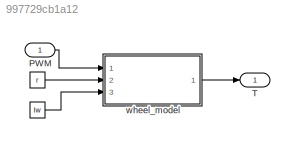
MODEL slx_997729cb1a12
KIND model
CONFIG AbsTol = auto
CONFIG FixedStep = auto
CONFIG MaxStep = auto
CONFIG MinStep = auto
CONFIG RelTol = 1e-3
CONFIG SampleTimeConstraint = Unconstrained
CONFIG Solver = VariableStepAuto
CONFIG SolverMode = Auto
CONFIG SolverName = VariableStepAuto
CONFIG StartTime = 0.0
CONFIG StopTime = 10.0
BLOCK [Constant]  
  Value = r
BLOCK [Constant]   
  Value = Iw
BLOCK [Inport] PWM
  IconDisplay = Port number
BLOCK [Outport] T
  IconDisplay = Port number
  PortDimensions = 3
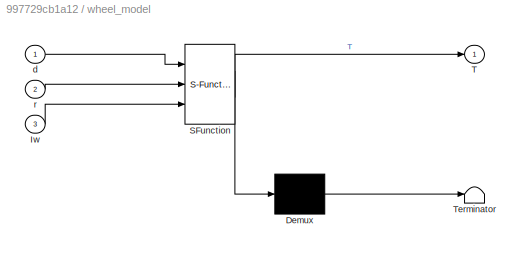
BLOCK [SubSystem] wheel_model
  ErrorFcn = Stateflow.Translate.translate
  PermitHierarchicalResolution = ExplicitOnly
  Ports = [3, 1]
  RequestExecContextInheritance = off
  SFBlockType = MATLAB Function
  TreatAsAtomicUnit = on
  Variant = off
BLOCK [Demux] wheel_model/ Demux 
  Outputs = 1
  Ports = [1, 1]
BLOCK [S-Function] wheel_model/ SFunction 
  EnableBusSupport = on
  FunctionName = sf_sfun
  PortCounts = [3 2]
  Ports = [3, 2]
  SFunctionDeploymentMode = off
  Tag = Stateflow S-Function wheel_model 2
BLOCK [Terminator] wheel_model/ Terminator 
BLOCK [Inport] wheel_model/Iw
  IconDisplay = Port number
  Port = 3
BLOCK [Outport] wheel_model/T
  IconDisplay = Port number
BLOCK [Inport] wheel_model/d
  IconDisplay = Port number
BLOCK [Inport] wheel_model/r
  IconDisplay = Port number
  Port = 2
LINE   :1 -> wheel_model:3
LINE  :1 -> wheel_model:2
LINE PWM:1 -> wheel_model:1
LINE wheel_model:1 -> T:1
CHART wheel_model states=1 transitions=1
  STATE_LABEL 'eML_blk_kernel()'
  STATE_LABEL 'SCRIPT:\nfunction T = wheel_model(d, r, Iw)\n%#codegen\n\n% Todo find map from d -> ddtheta\nddtheta = d;\nT = [ddtheta * ( Iw / r );0;0];\n'
